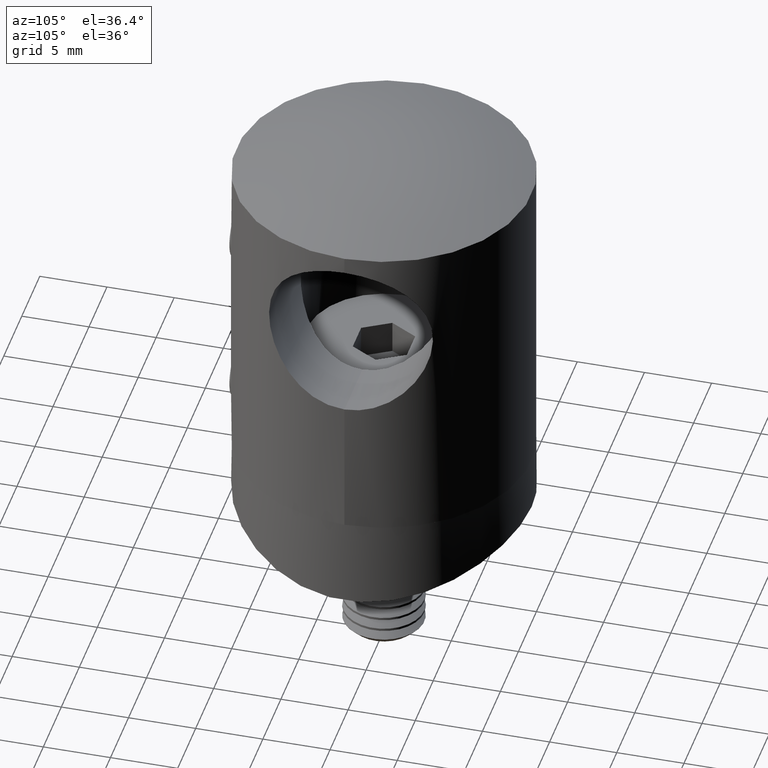
[diagram: clean part render]
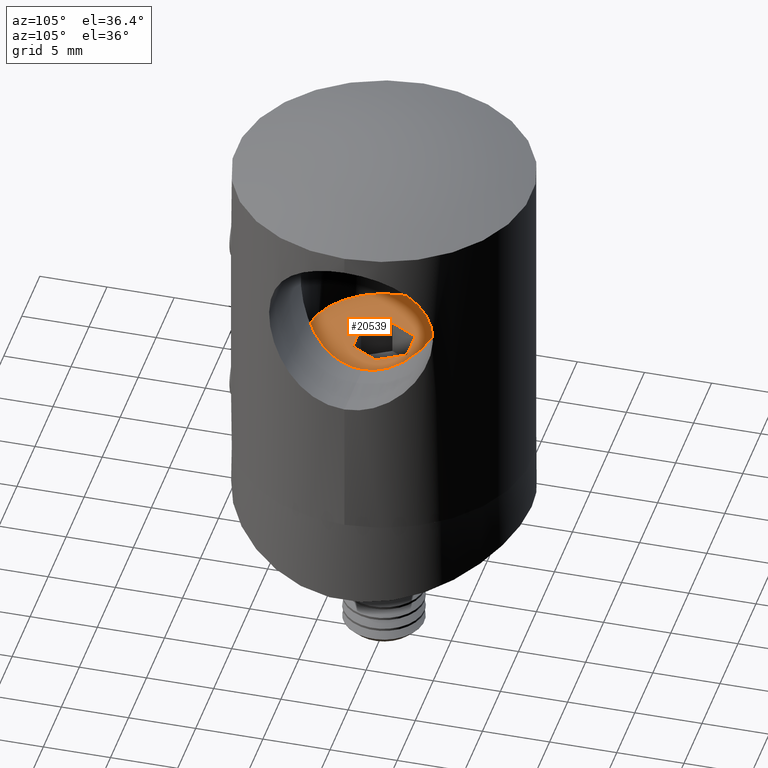
[diagram: same view with one face highlighted and labeled with its STEP entity id]
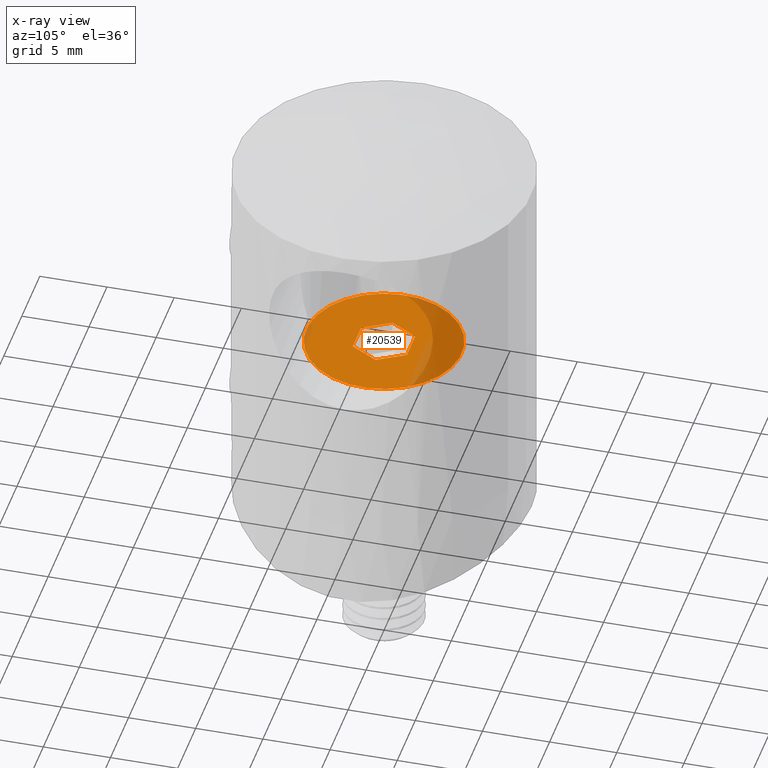
[diagram: x-ray of the same camera — body ghosted, the highlighted face saturated]
A machine part, auxiliary view. The second image highlights one B-rep face of the part: STEP entity #20539.
The next image is the same camera in x-ray: the body ghosted, the highlighted face saturated — about 26% of this face is hidden behind the body in this view.
In plain terms, the highlighted planar face has unit normal (-0, 0, 1).
Its self-contained STEP definition (entity closure, byte-faithful):
#637 = VECTOR ( 'NONE', #12766, 1000.000000000000200 ) ;
#1071 = CARTESIAN_POINT ( 'NONE',  ( 0.0000000000000000000, -1.160474041071147200, 2.009999999999999800 ) ) ;
#1130 = CARTESIAN_POINT ( 'NONE',  ( 0.0000000000000000000, 2.320948082142296100, -3.233603273357869300E-017 ) ) ;
#1339 = CARTESIAN_POINT ( 'NONE',  ( 0.0000000000000000000, 1.160474041071147600, -2.009999999999999300 ) ) ;
#1585 = VECTOR ( 'NONE', #19911, 1000.000000000000000 ) ;
#2040 = VERTEX_POINT ( 'NONE', #21588 ) ;
#2096 = CARTESIAN_POINT ( 'NONE',  ( 0.0000000000000000000, -2.320948082142296500, 0.0000000000000000000 ) ) ;
#2495 = CARTESIAN_POINT ( 'NONE',  ( 0.0000000000000000000, -1.160474041071147200, 2.009999999999999800 ) ) ;
#2725 = EDGE_CURVE ( 'NONE', #11145, #8577, #19795, .T. ) ;
#3674 = ORIENTED_EDGE ( 'NONE', *, *, #14022, .T. ) ;
#3993 = EDGE_LOOP ( 'NONE', ( #8730 ) ) ;
#4415 = DIRECTION ( 'NONE',  ( -1.000000000000000000, 0.0000000000000000000, -0.0000000000000000000 ) ) ;
#5526 = CARTESIAN_POINT ( 'NONE',  ( -0.0000000000000000000, -1.160474041071147200, -2.009999999999999800 ) ) ;
#5570 = CIRCLE ( 'NONE', #7606, 5.785000000000000100 ) ;
#6061 = LINE ( 'NONE', #15702, #12857 ) ;
#6578 = FACE_OUTER_BOUND ( 'NONE', #3993, .T. ) ;
#6893 = ORIENTED_EDGE ( 'NONE', *, *, #8669, .T. ) ;
#7062 = ORIENTED_EDGE ( 'NONE', *, *, #2725, .T. ) ;
#7095 = EDGE_CURVE ( 'NONE', #2040, #11614, #16425, .T. ) ;
#7606 = AXIS2_PLACEMENT_3D ( 'NONE', #11007, #17611, #21358 ) ;
#7999 = CARTESIAN_POINT ( 'NONE',  ( 0.0000000000000000000, 0.0000000000000000000, 0.0000000000000000000 ) ) ;
#8307 = VECTOR ( 'NONE', #17672, 1000.000000000000000 ) ;
#8410 = CARTESIAN_POINT ( 'NONE',  ( 0.0000000000000000000, 0.0000000000000000000, 5.785000000000000100 ) ) ;
#8577 = VERTEX_POINT ( 'NONE', #2495 ) ;
#8669 = EDGE_CURVE ( 'NONE', #8755, #11145, #9617, .T. ) ;
#8730 = ORIENTED_EDGE ( 'NONE', *, *, #16462, .T. ) ;
#8755 = VERTEX_POINT ( 'NONE', #1130 ) ;
#8964 = DIRECTION ( 'NONE',  ( 0.0000000000000000000, 0.5000000000000004400, -0.8660254037844383700 ) ) ;
#9034 = CARTESIAN_POINT ( 'NONE',  ( 0.0000000000000000000, 1.160474041071147600, -2.009999999999999300 ) ) ;
#9501 = VERTEX_POINT ( 'NONE', #8410 ) ;
#9617 = LINE ( 'NONE', #17929, #637 ) ;
#9685 = EDGE_CURVE ( 'NONE', #21156, #2040, #6061, .T. ) ;
#9744 = DIRECTION ( 'NONE',  ( -0.0000000000000000000, 0.0000000000000000000, 1.000000000000000000 ) ) ;
#9797 = LINE ( 'NONE', #1339, #17668 ) ;
#10842 = ORIENTED_EDGE ( 'NONE', *, *, #9685, .T. ) ;
#11007 = CARTESIAN_POINT ( 'NONE',  ( 0.0000000000000000000, 0.0000000000000000000, 0.0000000000000000000 ) ) ;
#11145 = VERTEX_POINT ( 'NONE', #16167 ) ;
#11614 = VERTEX_POINT ( 'NONE', #9034 ) ;
#12766 = DIRECTION ( 'NONE',  ( 0.0000000000000000000, -0.5000000000000003300, 0.8660254037844383700 ) ) ;
#12797 = ORIENTED_EDGE ( 'NONE', *, *, #13409, .T. ) ;
#12857 = VECTOR ( 'NONE', #8964, 1000.000000000000000 ) ;
#13374 = DIRECTION ( 'NONE',  ( -0.0000000000000000000, -0.5000000000000004400, -0.8660254037844383700 ) ) ;
#13409 = EDGE_CURVE ( 'NONE', #11614, #8755, #9797, .T. ) ;
#14022 = EDGE_CURVE ( 'NONE', #8577, #21156, #19373, .T. ) ;
#15702 = CARTESIAN_POINT ( 'NONE',  ( -0.0000000000000000000, -2.320948082142296100, -2.915072610455690300E-018 ) ) ;
#16167 = CARTESIAN_POINT ( 'NONE',  ( 0.0000000000000000000, 1.160474041071147600, 2.009999999999999800 ) ) ;
#16425 = LINE ( 'NONE', #5526, #8307 ) ;
#16462 = EDGE_CURVE ( 'NONE', #9501, #9501, #5570, .T. ) ;
#17359 = AXIS2_PLACEMENT_3D ( 'NONE', #7999, #4415, #9744 ) ;
#17611 = DIRECTION ( 'NONE',  ( -1.000000000000000000, -0.0000000000000000000, -0.0000000000000000000 ) ) ;
#17668 = VECTOR ( 'NONE', #20496, 1000.000000000000200 ) ;
#17672 = DIRECTION ( 'NONE',  ( 0.0000000000000000000, 1.000000000000000000, 1.868550495941741000E-016 ) ) ;
#17929 = CARTESIAN_POINT ( 'NONE',  ( 0.0000000000000000000, 2.320948082142296100, -3.233603273357869300E-017 ) ) ;
#17944 = CARTESIAN_POINT ( 'NONE',  ( 0.0000000000000000000, 1.160474041071147600, 2.009999999999999800 ) ) ;
#18385 = PLANE ( 'NONE',  #17359 ) ;
#18571 = VECTOR ( 'NONE', #13374, 1000.000000000000000 ) ;
#19373 = LINE ( 'NONE', #1071, #18571 ) ;
#19795 = LINE ( 'NONE', #17944, #1585 ) ;
#19911 = DIRECTION ( 'NONE',  ( 0.0000000000000000000, -1.000000000000000000, 0.0000000000000000000 ) ) ;
#20496 = DIRECTION ( 'NONE',  ( 0.0000000000000000000, 0.5000000000000003300, 0.8660254037844383700 ) ) ;
#20539 = ADVANCED_FACE ( 'NONE', ( #6578, #21265 ), #18385, .T. ) ;
#21156 = VERTEX_POINT ( 'NONE', #2096 ) ;
#21265 = FACE_BOUND ( 'NONE', #21876, .T. ) ;
#21358 = DIRECTION ( 'NONE',  ( 0.0000000000000000000, 0.0000000000000000000, 1.000000000000000000 ) ) ;
#21435 = ORIENTED_EDGE ( 'NONE', *, *, #7095, .T. ) ;
#21588 = CARTESIAN_POINT ( 'NONE',  ( -0.0000000000000000000, -1.160474041071147200, -2.009999999999999800 ) ) ;
#21876 = EDGE_LOOP ( 'NONE', ( #3674, #10842, #21435, #12797, #6893, #7062 ) ) ;